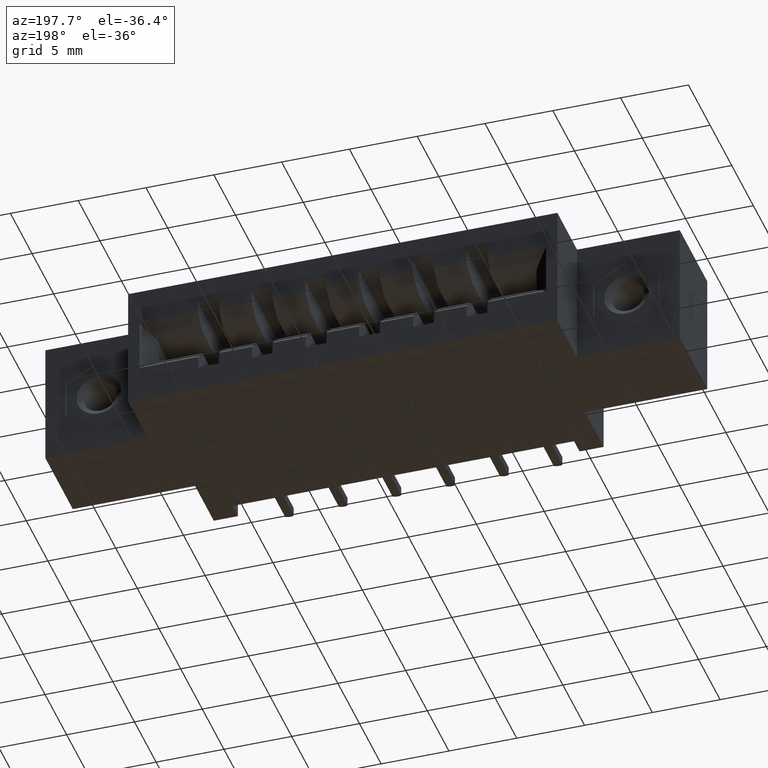
[diagram: clean part render]
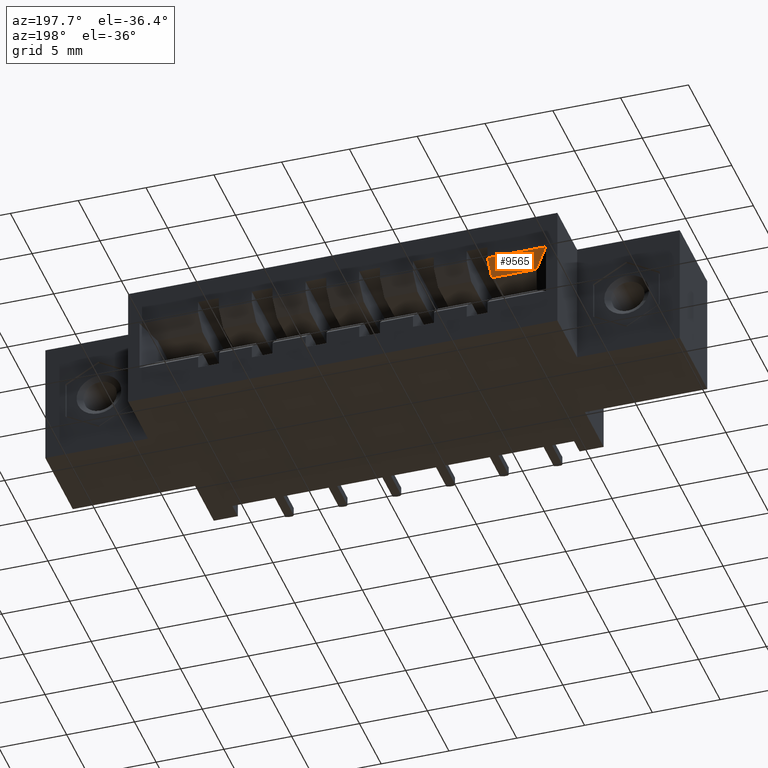
[diagram: same view with one face highlighted and labeled with its STEP entity id]
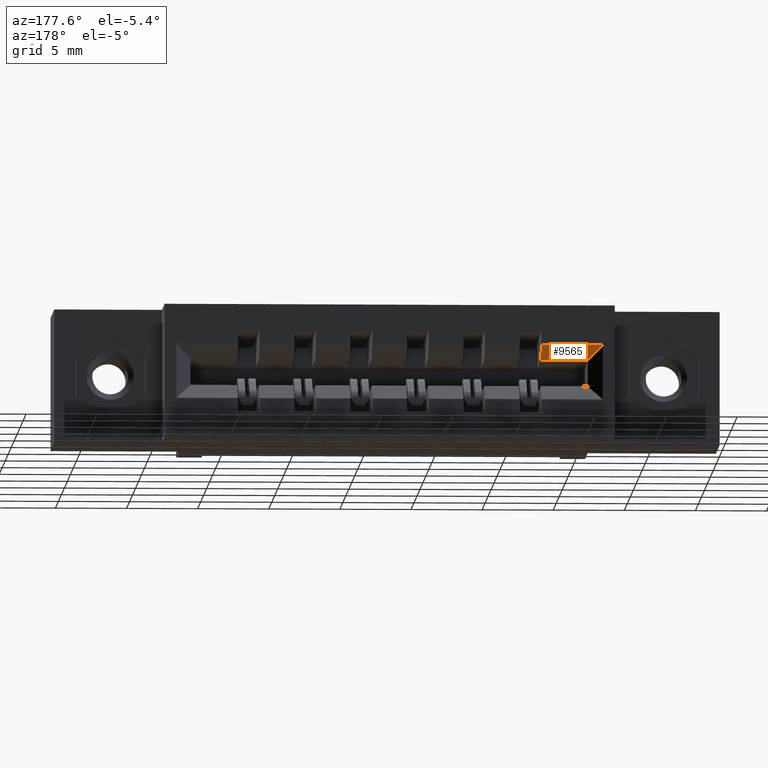
[diagram: same view with one face highlighted and labeled with its STEP entity id]
A machine part, auxiliary view. The second image highlights one B-rep face of the part: STEP entity #9565.
A second angle (auxiliary view) of the same face is appended — the face is thin or edge-on in the first view.
In plain terms, the highlighted planar face has unit normal (0, -0.7071, 0.7071).
Its self-contained STEP definition (entity closure, byte-faithful):
#289 = VECTOR ( 'NONE', #9356, 39.37007874015748100 ) ;
#335 = LINE ( 'NONE', #6237, #289 ) ;
#396 = FACE_OUTER_BOUND ( 'NONE', #5339, .T. ) ;
#714 = VECTOR ( 'NONE', #3461, 39.37007874015748100 ) ;
#868 = CARTESIAN_POINT ( 'NONE',  ( 0.5010000000000001100, 0.5999999999999999800, -0.1090000000000001900 ) ) ;
#880 = AXIS2_PLACEMENT_3D ( 'NONE', #2060, #10130, #5757 ) ;
#886 = LINE ( 'NONE', #7786, #714 ) ;
#1056 = LINE ( 'NONE', #6453, #1079 ) ;
#1079 = VECTOR ( 'NONE', #6372, 39.37007874015748900 ) ;
#1229 = VERTEX_POINT ( 'NONE', #1565 ) ;
#1346 = VECTOR ( 'NONE', #2741, 39.37007874015748100 ) ;
#1422 = LINE ( 'NONE', #7866, #1346 ) ;
#1565 = CARTESIAN_POINT ( 'NONE',  ( 0.5010000000000001100, 0.5600000000000003900, -0.1490000000000000500 ) ) ;
#2060 = CARTESIAN_POINT ( 'NONE',  ( 0.3710000000000000000, 0.5600000000000003900, -0.1490000000000000800 ) ) ;
#2741 = DIRECTION ( 'NONE',  ( -1.000000000000000000, 0.0000000000000000000, 0.0000000000000000000 ) ) ;
#3461 = DIRECTION ( 'NONE',  ( 1.000000000000000000, 0.0000000000000000000, 0.0000000000000000000 ) ) ;
#3723 = EDGE_CURVE ( 'NONE', #7810, #10423, #1422, .T. ) ;
#4430 = ORIENTED_EDGE ( 'NONE', *, *, #3723, .F. ) ;
#5141 = EDGE_CURVE ( 'NONE', #10423, #8486, #1056, .T. ) ;
#5339 = EDGE_LOOP ( 'NONE', ( #4430, #9548, #10127, #10237 ) ) ;
#5757 = DIRECTION ( 'NONE',  ( 0.0000000000000000000, -0.7071067811865451300, -0.7071067811865499000 ) ) ;
#6237 = CARTESIAN_POINT ( 'NONE',  ( 0.5010000000000001100, 0.5600000000000003900, -0.1490000000000000800 ) ) ;
#6372 = DIRECTION ( 'NONE',  ( 0.5773502691896269500, -0.5773502691896230700, -0.5773502691896269500 ) ) ;
#6453 = CARTESIAN_POINT ( 'NONE',  ( 0.3950000000000001800, 0.5360000000000004800, -0.1730000000000001800 ) ) ;
#7786 = CARTESIAN_POINT ( 'NONE',  ( 0.3710000000000000000, 0.5600000000000003900, -0.1490000000000000800 ) ) ;
#7810 = VERTEX_POINT ( 'NONE', #868 ) ;
#7866 = CARTESIAN_POINT ( 'NONE',  ( 0.0000000000000000000, 0.5999999999999999800, -0.1090000000000002200 ) ) ;
#8486 = VERTEX_POINT ( 'NONE', #10339 ) ;
#9026 = EDGE_CURVE ( 'NONE', #8486, #1229, #886, .T. ) ;
#9155 = EDGE_CURVE ( 'NONE', #7810, #1229, #335, .T. ) ;
#9247 = CARTESIAN_POINT ( 'NONE',  ( 0.3310000000000001800, 0.5999999999999999800, -0.1090000000000002200 ) ) ;
#9356 = DIRECTION ( 'NONE',  ( -0.0000000000000000000, -0.7071067811865451300, -0.7071067811865499000 ) ) ;
#9548 = ORIENTED_EDGE ( 'NONE', *, *, #9155, .T. ) ;
#9565 = ADVANCED_FACE ( 'NONE', ( #396 ), #9621, .F. ) ;
#9621 = PLANE ( 'NONE',  #880 ) ;
#10127 = ORIENTED_EDGE ( 'NONE', *, *, #9026, .F. ) ;
#10130 = DIRECTION ( 'NONE',  ( 0.0000000000000000000, -0.7071067811865499000, 0.7071067811865451300 ) ) ;
#10237 = ORIENTED_EDGE ( 'NONE', *, *, #5141, .F. ) ;
#10339 = CARTESIAN_POINT ( 'NONE',  ( 0.3710000000000000000, 0.5600000000000003900, -0.1490000000000000800 ) ) ;
#10423 = VERTEX_POINT ( 'NONE', #9247 ) ;